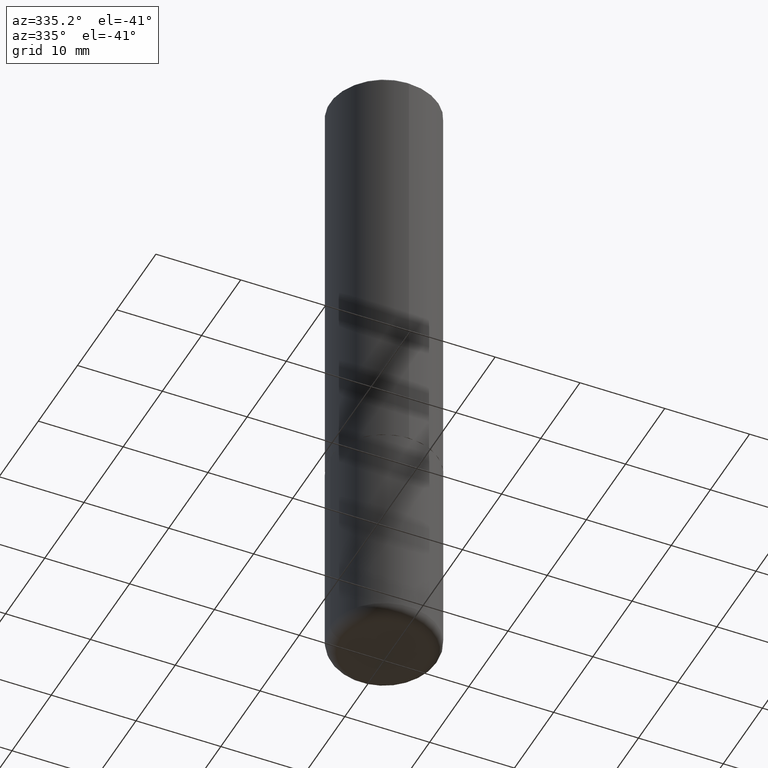
[diagram: clean part render]
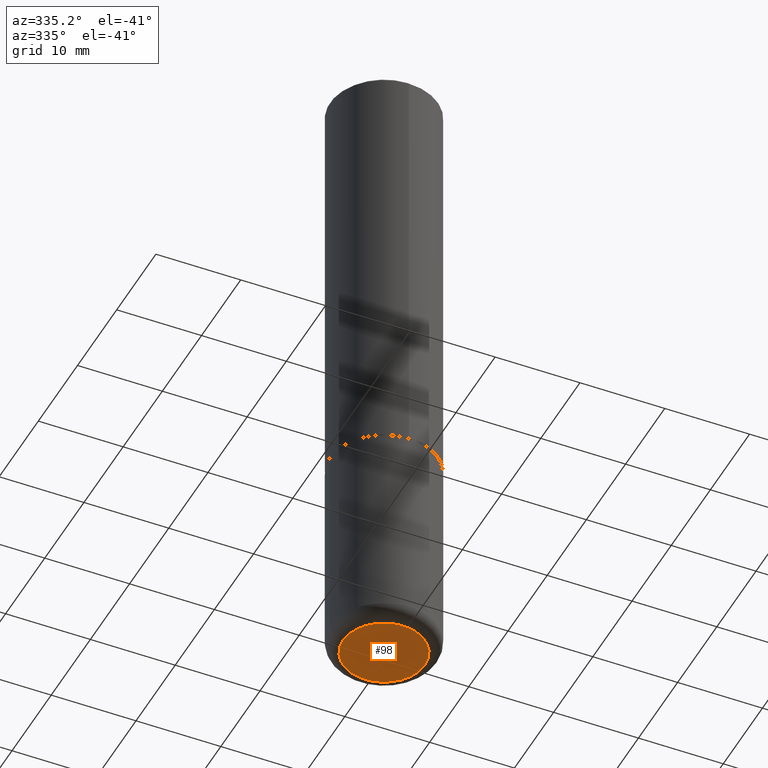
[diagram: same view with one face highlighted and labeled with its STEP entity id]
A machine part, auxiliary view. The second image highlights one B-rep face of the part: STEP entity #98.
In plain terms, the highlighted planar face has unit normal (0, -0, -1).
Its self-contained STEP definition (entity closure, byte-faithful):
#19 = CARTESIAN_POINT ( 'NONE',  ( -0.1899999999999999745, -8.806505557691924342E-15, -2.999999999999999556 ) ) ;
#38 = AXIS2_PLACEMENT_3D ( 'NONE', #239, #116, #78 ) ;
#47 = ORIENTED_EDGE ( 'NONE', *, *, #269, .F. ) ;
#55 = EDGE_CURVE ( 'NONE', #90, #114, #242, .T. ) ;
#78 = DIRECTION ( 'NONE',  ( -1.000000000000000000, 6.982962677686265922E-15, -4.876176775795935793E-29 ) ) ;
#90 = VERTEX_POINT ( 'NONE', #166 ) ;
#98 = ADVANCED_FACE ( 'NONE', ( #110 ), #263, .T. ) ;
#102 = AXIS2_PLACEMENT_3D ( 'NONE', #417, #147, #153 ) ;
#110 = FACE_OUTER_BOUND ( 'NONE', #299, .T. ) ;
#114 = VERTEX_POINT ( 'NONE', #19 ) ;
#116 = DIRECTION ( 'NONE',  ( 2.438088387897960049E-29, -3.491481338843145188E-15, -1.000000000000000000 ) ) ;
#133 = CARTESIAN_POINT ( 'NONE',  ( 7.336406418555408669E-29, -1.047444401652943478E-14, -2.999999999999999556 ) ) ;
#147 = DIRECTION ( 'NONE',  ( -2.445468806185136597E-29, 3.491481338843145583E-15, 1.000000000000000000 ) ) ;
#153 = DIRECTION ( 'NONE',  ( 1.000000000000000000, -6.982962677686273021E-15, 0.000000000000000000 ) ) ;
#158 = CIRCLE ( 'NONE', #102, 0.1899999999999999745 ) ;
#165 = DIRECTION ( 'NONE',  ( -2.445468806185136597E-29, 3.491481338843145583E-15, 1.000000000000000000 ) ) ;
#166 = CARTESIAN_POINT ( 'NONE',  ( 0.1899999999999999745, -1.180120692528982640E-14, -2.999999999999999556 ) ) ;
#213 = ORIENTED_EDGE ( 'NONE', *, *, #55, .F. ) ;
#239 = CARTESIAN_POINT ( 'NONE',  ( 1.336053039146161825E-28, -1.847555615484388985E-15, -2.999999999999999556 ) ) ;
#242 = CIRCLE ( 'NONE', #304, 0.1899999999999999745 ) ;
#263 = PLANE ( 'NONE',  #38 ) ;
#269 = EDGE_CURVE ( 'NONE', #114, #90, #158, .T. ) ;
#299 = EDGE_LOOP ( 'NONE', ( #213, #47 ) ) ;
#304 = AXIS2_PLACEMENT_3D ( 'NONE', #133, #165, #413 ) ;
#413 = DIRECTION ( 'NONE',  ( 1.000000000000000000, -6.982962677686273021E-15, 0.000000000000000000 ) ) ;
#417 = CARTESIAN_POINT ( 'NONE',  ( 7.336406418555408669E-29, -1.047444401652943478E-14, -2.999999999999999556 ) ) ;